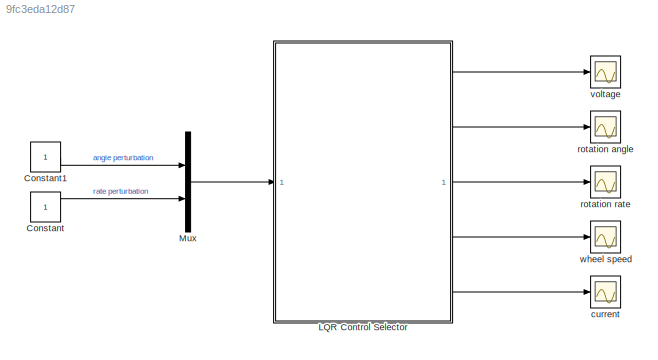
MODEL slx_9fc3eda12d87
KIND model
CONFIG AbsTol = auto
CONFIG EnableMultiTasking = off
CONFIG FixedStep = auto
CONFIG MaxStep = auto
CONFIG MinStep = auto
CONFIG RelTol = 1e-3
CONFIG SampleTimeConstraint = Unconstrained
CONFIG SolverName = VariableStepAuto
CONFIG StartTime = 0.0
CONFIG StopTime = 10
BLOCK [Constant] Constant
BLOCK [Constant] Constant1
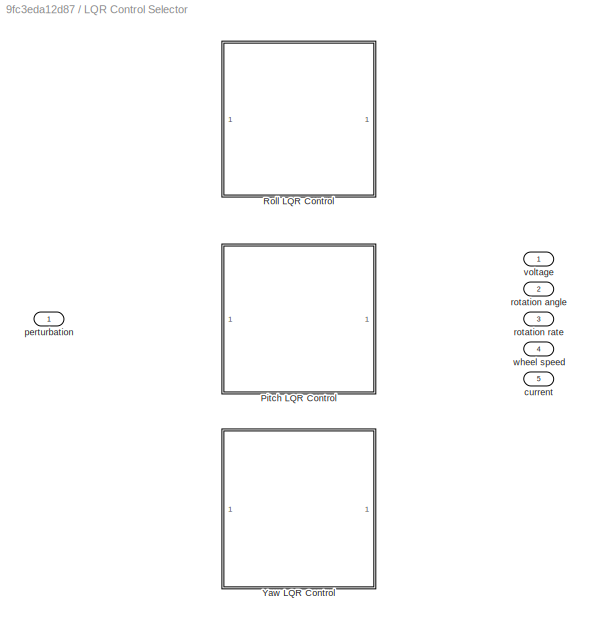
BLOCK [SubSystem] LQR Control Selector
  Variant = on
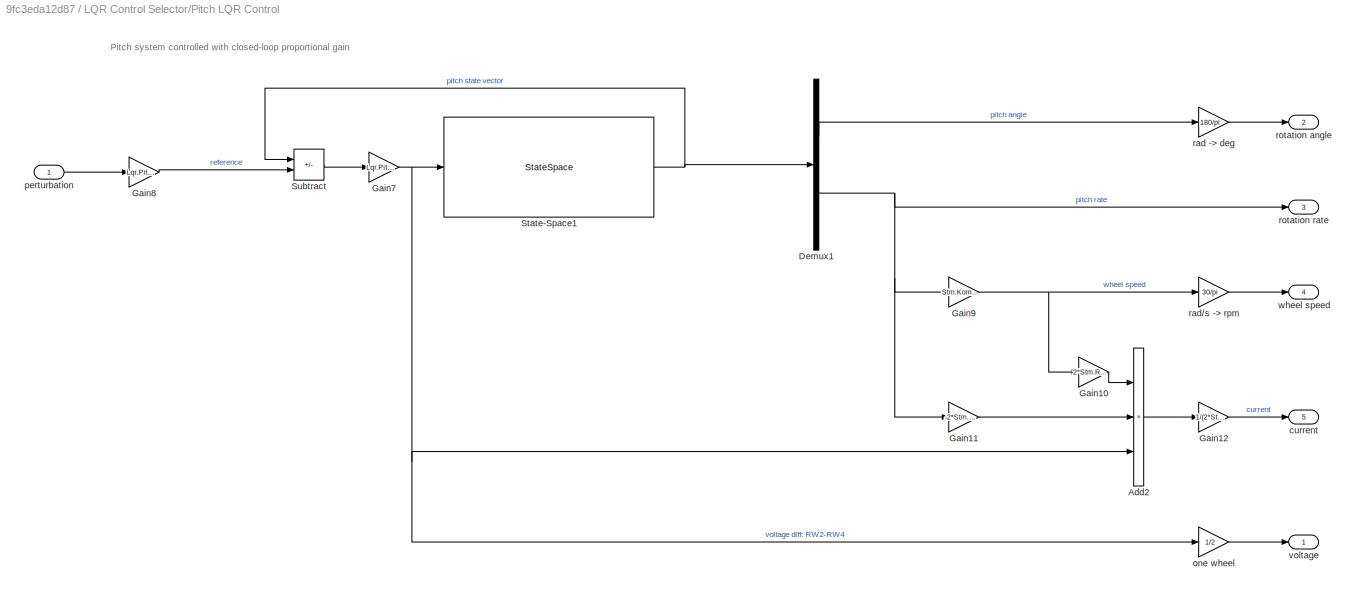
BLOCK [SubSystem] LQR Control Selector/Pitch LQR Control
  VariantControl = strcmp(RunArg.selsim, 'pitch')
BLOCK [Sum] LQR Control Selector/Pitch LQR Control/Add2
  IconShape = rectangular
  Inputs = +++
BLOCK [Demux] LQR Control Selector/Pitch LQR Control/Demux1
  Outputs = 2
BLOCK [Gain] LQR Control Selector/Pitch LQR Control/Gain10
  Gain = 2*Stm.RW.torqueCst
BLOCK [Gain] LQR Control Selector/Pitch LQR Control/Gain11
  Gain = -2*Stm.RW.torqueCst*sin(Stm.RW.beta)
BLOCK [Gain] LQR Control Selector/Pitch LQR Control/Gain12
  Gain = 1/(2*Stm.RW.elecR)
BLOCK [Gain] LQR Control Selector/Pitch LQR Control/Gain7
  Gain = Lqr.Pitch.K
  Multiplication = Matrix(K*u) (u vector)
  NameLocation = top
BLOCK [Gain] LQR Control Selector/Pitch LQR Control/Gain8
  Gain = Lqr.Pitch.targetState
BLOCK [Gain] LQR Control Selector/Pitch LQR Control/Gain9
  Gain = Stm.Komrk.Iyy/(2*Reqr.Sizing.Irw*sin(Stm.RW.beta))
BLOCK [StateSpace] LQR Control Selector/Pitch LQR Control/State-Space1
  A = SS.Pitch.A
  B = SS.Pitch.B
  C = SS.Pitch.C_MIMO
  D = SS.Pitch.D_MIMO
  InitialCondition = 0
BLOCK [Sum] LQR Control Selector/Pitch LQR Control/Subtract
  IconShape = rectangular
  Inputs = -+
BLOCK [Outport] LQR Control Selector/Pitch LQR Control/current
  Port = 5
BLOCK [Gain] LQR Control Selector/Pitch LQR Control/one wheel
  Gain = 1/2
BLOCK [Inport] LQR Control Selector/Pitch LQR Control/perturbation
BLOCK [Gain] LQR Control Selector/Pitch LQR Control/rad -> deg
  Gain = 180/pi
BLOCK [Gain] LQR Control Selector/Pitch LQR Control/rad//s -> rpm
  Gain = 30/pi
BLOCK [Outport] LQR Control Selector/Pitch LQR Control/rotation angle
  Port = 2
BLOCK [Outport] LQR Control Selector/Pitch LQR Control/rotation rate
  Port = 3
BLOCK [Outport] LQR Control Selector/Pitch LQR Control/voltage
BLOCK [Outport] LQR Control Selector/Pitch LQR Control/wheel speed
  Port = 4
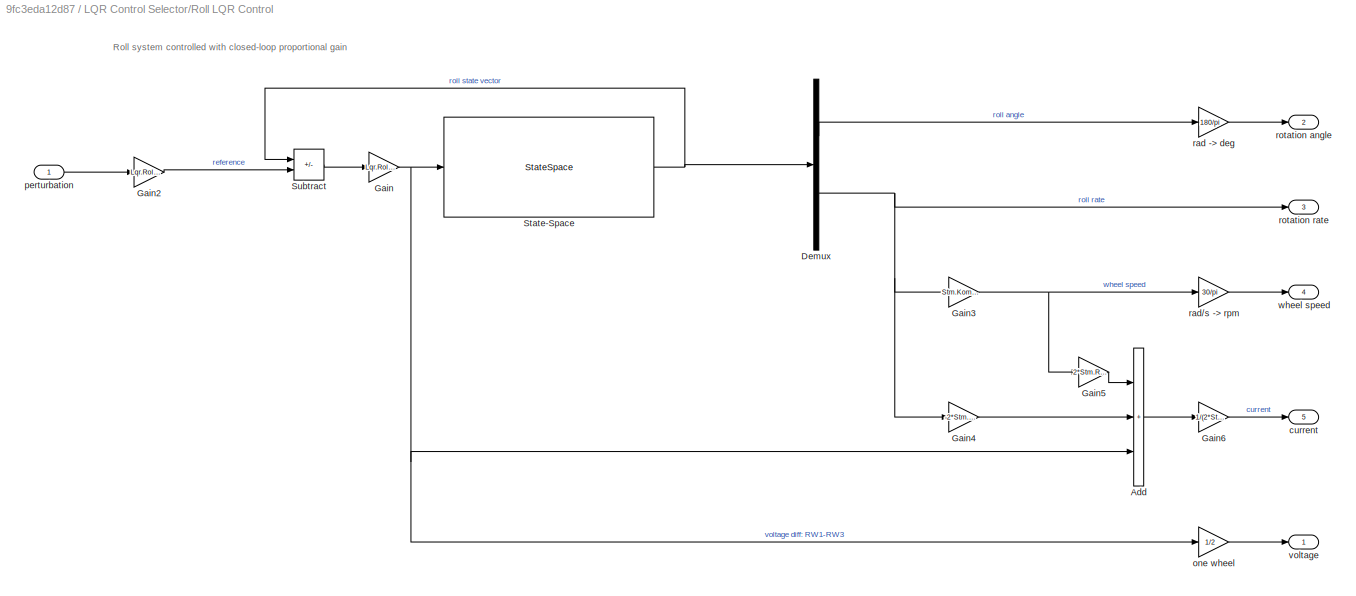
BLOCK [SubSystem] LQR Control Selector/Roll LQR Control
  VariantControl = strcmp(RunArg.selsim, 'roll')
BLOCK [Sum] LQR Control Selector/Roll LQR Control/Add
  IconShape = rectangular
  Inputs = +++
BLOCK [Demux] LQR Control Selector/Roll LQR Control/Demux
  Outputs = 2
BLOCK [Gain] LQR Control Selector/Roll LQR Control/Gain
  Gain = Lqr.Roll.K
  Multiplication = Matrix(K*u) (u vector)
  NameLocation = top
BLOCK [Gain] LQR Control Selector/Roll LQR Control/Gain2
  Gain = Lqr.Roll.targetState
BLOCK [Gain] LQR Control Selector/Roll LQR Control/Gain3
  Gain = Stm.Komrk.Ixx/(2*Reqr.Sizing.Irw*sin(Stm.RW.beta))
BLOCK [Gain] LQR Control Selector/Roll LQR Control/Gain4
  Gain = -2*Stm.RW.torqueCst*sin(Stm.RW.beta)
BLOCK [Gain] LQR Control Selector/Roll LQR Control/Gain5
  Gain = 2*Stm.RW.torqueCst
BLOCK [Gain] LQR Control Selector/Roll LQR Control/Gain6
  Gain = 1/(2*Stm.RW.elecR)
BLOCK [StateSpace] LQR Control Selector/Roll LQR Control/State-Space
  A = SS.Roll.A
  B = SS.Roll.B
  C = SS.Roll.C_MIMO
  D = SS.Roll.D_MIMO
  InitialCondition = 0
BLOCK [Sum] LQR Control Selector/Roll LQR Control/Subtract
  IconShape = rectangular
  Inputs = -+
BLOCK [Outport] LQR Control Selector/Roll LQR Control/current
  Port = 5
BLOCK [Gain] LQR Control Selector/Roll LQR Control/one wheel
  Gain = 1/2
BLOCK [Inport] LQR Control Selector/Roll LQR Control/perturbation
BLOCK [Gain] LQR Control Selector/Roll LQR Control/rad -> deg
  Gain = 180/pi
BLOCK [Gain] LQR Control Selector/Roll LQR Control/rad//s -> rpm
  Gain = 30/pi
BLOCK [Outport] LQR Control Selector/Roll LQR Control/rotation angle
  Port = 2
BLOCK [Outport] LQR Control Selector/Roll LQR Control/rotation rate
  Port = 3
BLOCK [Outport] LQR Control Selector/Roll LQR Control/voltage
BLOCK [Outport] LQR Control Selector/Roll LQR Control/wheel speed
  Port = 4
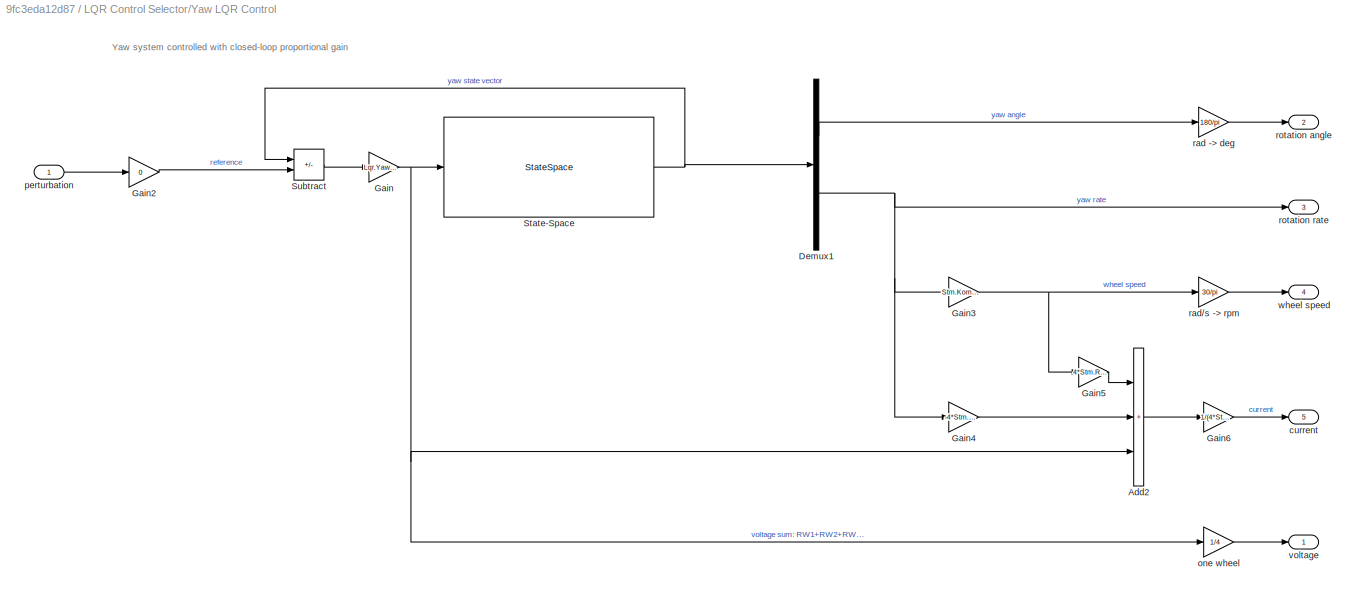
BLOCK [SubSystem] LQR Control Selector/Yaw LQR Control
  VariantControl = strcmp(RunArg.selsim, 'yaw')
BLOCK [Sum] LQR Control Selector/Yaw LQR Control/Add2
  IconShape = rectangular
  Inputs = +++
BLOCK [Demux] LQR Control Selector/Yaw LQR Control/Demux1
  Outputs = 2
BLOCK [Gain] LQR Control Selector/Yaw LQR Control/Gain
  Gain = Lqr.Yaw.K
  Multiplication = Matrix(K*u) (u vector)
  NameLocation = top
BLOCK [Gain] LQR Control Selector/Yaw LQR Control/Gain2
  Gain = 0
BLOCK [Gain] LQR Control Selector/Yaw LQR Control/Gain3
  Gain = Stm.Komrk.Izz/(4*Reqr.Sizing.Irw*cos(Stm.RW.beta))
BLOCK [Gain] LQR Control Selector/Yaw LQR Control/Gain4
  Gain = -4*Stm.RW.torqueCst*cos(Stm.RW.beta)
BLOCK [Gain] LQR Control Selector/Yaw LQR Control/Gain5
  Gain = 4*Stm.RW.torqueCst
BLOCK [Gain] LQR Control Selector/Yaw LQR Control/Gain6
  Gain = 1/(4*Stm.RW.elecR)
BLOCK [StateSpace] LQR Control Selector/Yaw LQR Control/State-Space
  A = SS.Yaw.A
  B = SS.Yaw.B
  C = SS.Yaw.C_MIMO
  D = SS.Yaw.D_MIMO
  InitialCondition = Lqr.Yaw.initialState
BLOCK [Sum] LQR Control Selector/Yaw LQR Control/Subtract
  IconShape = rectangular
  Inputs = -+
BLOCK [Outport] LQR Control Selector/Yaw LQR Control/current
  Port = 5
BLOCK [Gain] LQR Control Selector/Yaw LQR Control/one wheel
  Gain = 1/4
BLOCK [Inport] LQR Control Selector/Yaw LQR Control/perturbation
BLOCK [Gain] LQR Control Selector/Yaw LQR Control/rad -> deg
  Gain = 180/pi
BLOCK [Gain] LQR Control Selector/Yaw LQR Control/rad//s -> rpm
  Gain = 30/pi
BLOCK [Outport] LQR Control Selector/Yaw LQR Control/rotation angle
  Port = 2
BLOCK [Outport] LQR Control Selector/Yaw LQR Control/rotation rate
  Port = 3
BLOCK [Outport] LQR Control Selector/Yaw LQR Control/voltage
BLOCK [Outport] LQR Control Selector/Yaw LQR Control/wheel speed
  Port = 4
BLOCK [Outport] LQR Control Selector/current
  NameLocation = right
  Port = 5
BLOCK [Inport] LQR Control Selector/perturbation
  NameLocation = left
BLOCK [Outport] LQR Control Selector/rotation angle
  NameLocation = right
  Port = 2
BLOCK [Outport] LQR Control Selector/rotation rate
  NameLocation = right
  Port = 3
BLOCK [Outport] LQR Control Selector/voltage
  NameLocation = right
BLOCK [Outport] LQR Control Selector/wheel speed
  NameLocation = right
  Port = 4
BLOCK [Mux] Mux
  DisplayOption = bar
  Inputs = 2
BLOCK [Scope] current
  Floating = off
  NameLocation = right
  NumInputPorts = 1
  ScopeSpecificationString = Simulink.scopes.TimeScopeBlockCfg('CurrentConfiguration', extmgr.ConfigurationSet(extmgr.Configuration('Core','General UI',true),extmgr.Configuration('Core','Source UI',true),extmgr.Configuration('Sources','WiredSimulink',true,'DataLoggingVariableName','current','DataLogging',true,'DataLoggingSaveFormat','Structure'),extmgr.Configuration('Visuals','Time Domain',true,'SerializedDisplays',{struct('M...<+1500ch>
BLOCK [Scope] rotation angle
  Floating = off
  NameLocation = right
  NumInputPorts = 1
  ScopeSpecificationString = Simulink.scopes.TimeScopeBlockCfg('CurrentConfiguration', extmgr.ConfigurationSet(extmgr.Configuration('Core','General UI',true),extmgr.Configuration('Core','Source UI',true),extmgr.Configuration('Sources','WiredSimulink',true,'DataLogging',true,'DataLoggingVariableName','rotAngle','DataLoggingSaveFormat','Structure'),extmgr.Configuration('Visuals','Time Domain',true,'SerializedDisplays',{struct('...<+1492ch>
BLOCK [Scope] rotation rate
  Floating = off
  NameLocation = right
  NumInputPorts = 1
  ScopeSpecificationString = Simulink.scopes.TimeScopeBlockCfg('CurrentConfiguration', extmgr.ConfigurationSet(extmgr.Configuration('Core','General UI',true),extmgr.Configuration('Core','Source UI',true),extmgr.Configuration('Sources','WiredSimulink',true,'DataLoggingVariableName','rotRate','DataLogging',true,'DataLoggingSaveFormat','Structure'),extmgr.Configuration('Visuals','Time Domain',true,'SerializedDisplays',{struct('M...<+1471ch>
BLOCK [Scope] voltage
  Floating = off
  NameLocation = right
  NumInputPorts = 1
  ScopeSpecificationString = Simulink.scopes.TimeScopeBlockCfg('CurrentConfiguration', extmgr.ConfigurationSet(extmgr.Configuration('Core','General UI',true),extmgr.Configuration('Core','Source UI',true),extmgr.Configuration('Sources','WiredSimulink',true,'DataLoggingVariableName','voltage','DataLogging',true,'DataLoggingSaveFormat','Structure'),extmgr.Configuration('Visuals','Time Domain',true,'SerializedDisplays',{struct('M...<+1512ch>
BLOCK [Scope] wheel speed
  Floating = off
  NameLocation = right
  NumInputPorts = 1
  ScopeSpecificationString = Simulink.scopes.TimeScopeBlockCfg('CurrentConfiguration', extmgr.ConfigurationSet(extmgr.Configuration('Core','General UI',true),extmgr.Configuration('Core','Source UI',true),extmgr.Configuration('Sources','WiredSimulink',true,'DataLoggingVariableName','rwSpeed','DataLogging',true,'DataLoggingSaveFormat','Structure'),extmgr.Configuration('Visuals','Time Domain',true,'SerializedDisplays',{struct('M...<+1451ch>
ANNOTATION LQR Control Selector/Pitch LQR Control: Pitch system controlled with closed-loop proportional gain
ANNOTATION LQR Control Selector/Roll LQR Control: Roll system controlled with closed-loop proportional gain
ANNOTATION LQR Control Selector/Yaw LQR Control: Yaw system controlled with closed-loop proportional gain
LINE Constant1:1 -> Mux:1
LINE Constant:1 -> Mux:2
LINE LQR Control Selector/Pitch LQR Control/Add2:1 -> LQR Control Selector/Pitch LQR Control/Gain12:1
LINE LQR Control Selector/Pitch LQR Control/Demux1:1 -> LQR Control Selector/Pitch LQR Control/rad -> deg:1
NET LQR Control Selector/Pitch LQR Control/Demux1:2 -> LQR Control Selector/Pitch LQR Control/Gain11:1, LQR Control Selector/Pitch LQR Control/Gain9:1, LQR Control Selector/Pitch LQR Control/rotation rate:1
LINE LQR Control Selector/Pitch LQR Control/Gain10:1 -> LQR Control Selector/Pitch LQR Control/Add2:1
LINE LQR Control Selector/Pitch LQR Control/Gain11:1 -> LQR Control Selector/Pitch LQR Control/Add2:2
LINE LQR Control Selector/Pitch LQR Control/Gain12:1 -> LQR Control Selector/Pitch LQR Control/current:1
NET LQR Control Selector/Pitch LQR Control/Gain7:1 -> LQR Control Selector/Pitch LQR Control/Add2:3, LQR Control Selector/Pitch LQR Control/State-Space1:1, LQR Control Selector/Pitch LQR Control/one wheel:1
LINE LQR Control Selector/Pitch LQR Control/Gain8:1 -> LQR Control Selector/Pitch LQR Control/Subtract:2
NET LQR Control Selector/Pitch LQR Control/Gain9:1 -> LQR Control Selector/Pitch LQR Control/Gain10:1, LQR Control Selector/Pitch LQR Control/rad//s -> rpm:1
NET LQR Control Selector/Pitch LQR Control/State-Space1:1 -> LQR Control Selector/Pitch LQR Control/Demux1:1, LQR Control Selector/Pitch LQR Control/Subtract:1
LINE LQR Control Selector/Pitch LQR Control/Subtract:1 -> LQR Control Selector/Pitch LQR Control/Gain7:1
LINE LQR Control Selector/Pitch LQR Control/one wheel:1 -> LQR Control Selector/Pitch LQR Control/voltage:1
LINE LQR Control Selector/Pitch LQR Control/perturbation:1 -> LQR Control Selector/Pitch LQR Control/Gain8:1
LINE LQR Control Selector/Pitch LQR Control/rad -> deg:1 -> LQR Control Selector/Pitch LQR Control/rotation angle:1
LINE LQR Control Selector/Pitch LQR Control/rad//s -> rpm:1 -> LQR Control Selector/Pitch LQR Control/wheel speed:1
LINE LQR Control Selector/Roll LQR Control/Add:1 -> LQR Control Selector/Roll LQR Control/Gain6:1
LINE LQR Control Selector/Roll LQR Control/Demux:1 -> LQR Control Selector/Roll LQR Control/rad -> deg:1
NET LQR Control Selector/Roll LQR Control/Demux:2 -> LQR Control Selector/Roll LQR Control/Gain3:1, LQR Control Selector/Roll LQR Control/Gain4:1, LQR Control Selector/Roll LQR Control/rotation rate:1
LINE LQR Control Selector/Roll LQR Control/Gain2:1 -> LQR Control Selector/Roll LQR Control/Subtract:2
NET LQR Control Selector/Roll LQR Control/Gain3:1 -> LQR Control Selector/Roll LQR Control/Gain5:1, LQR Control Selector/Roll LQR Control/rad//s -> rpm:1
LINE LQR Control Selector/Roll LQR Control/Gain4:1 -> LQR Control Selector/Roll LQR Control/Add:2
LINE LQR Control Selector/Roll LQR Control/Gain5:1 -> LQR Control Selector/Roll LQR Control/Add:1
LINE LQR Control Selector/Roll LQR Control/Gain6:1 -> LQR Control Selector/Roll LQR Control/current:1
NET LQR Control Selector/Roll LQR Control/Gain:1 -> LQR Control Selector/Roll LQR Control/Add:3, LQR Control Selector/Roll LQR Control/State-Space:1, LQR Control Selector/Roll LQR Control/one wheel:1
NET LQR Control Selector/Roll LQR Control/State-Space:1 -> LQR Control Selector/Roll LQR Control/Demux:1, LQR Control Selector/Roll LQR Control/Subtract:1
LINE LQR Control Selector/Roll LQR Control/Subtract:1 -> LQR Control Selector/Roll LQR Control/Gain:1
LINE LQR Control Selector/Roll LQR Control/one wheel:1 -> LQR Control Selector/Roll LQR Control/voltage:1
LINE LQR Control Selector/Roll LQR Control/perturbation:1 -> LQR Control Selector/Roll LQR Control/Gain2:1
LINE LQR Control Selector/Roll LQR Control/rad -> deg:1 -> LQR Control Selector/Roll LQR Control/rotation angle:1
LINE LQR Control Selector/Roll LQR Control/rad//s -> rpm:1 -> LQR Control Selector/Roll LQR Control/wheel speed:1
LINE LQR Control Selector/Yaw LQR Control/Add2:1 -> LQR Control Selector/Yaw LQR Control/Gain6:1
LINE LQR Control Selector/Yaw LQR Control/Demux1:1 -> LQR Control Selector/Yaw LQR Control/rad -> deg:1
NET LQR Control Selector/Yaw LQR Control/Demux1:2 -> LQR Control Selector/Yaw LQR Control/Gain3:1, LQR Control Selector/Yaw LQR Control/Gain4:1, LQR Control Selector/Yaw LQR Control/rotation rate:1
LINE LQR Control Selector/Yaw LQR Control/Gain2:1 -> LQR Control Selector/Yaw LQR Control/Subtract:2
NET LQR Control Selector/Yaw LQR Control/Gain3:1 -> LQR Control Selector/Yaw LQR Control/Gain5:1, LQR Control Selector/Yaw LQR Control/rad//s -> rpm:1
LINE LQR Control Selector/Yaw LQR Control/Gain4:1 -> LQR Control Selector/Yaw LQR Control/Add2:2
LINE LQR Control Selector/Yaw LQR Control/Gain5:1 -> LQR Control Selector/Yaw LQR Control/Add2:1
LINE LQR Control Selector/Yaw LQR Control/Gain6:1 -> LQR Control Selector/Yaw LQR Control/current:1
NET LQR Control Selector/Yaw LQR Control/Gain:1 -> LQR Control Selector/Yaw LQR Control/Add2:3, LQR Control Selector/Yaw LQR Control/State-Space:1, LQR Control Selector/Yaw LQR Control/one wheel:1
NET LQR Control Selector/Yaw LQR Control/State-Space:1 -> LQR Control Selector/Yaw LQR Control/Demux1:1, LQR Control Selector/Yaw LQR Control/Subtract:1
LINE LQR Control Selector/Yaw LQR Control/Subtract:1 -> LQR Control Selector/Yaw LQR Control/Gain:1
LINE LQR Control Selector/Yaw LQR Control/one wheel:1 -> LQR Control Selector/Yaw LQR Control/voltage:1
LINE LQR Control Selector/Yaw LQR Control/perturbation:1 -> LQR Control Selector/Yaw LQR Control/Gain2:1
LINE LQR Control Selector/Yaw LQR Control/rad -> deg:1 -> LQR Control Selector/Yaw LQR Control/rotation angle:1
LINE LQR Control Selector/Yaw LQR Control/rad//s -> rpm:1 -> LQR Control Selector/Yaw LQR Control/wheel speed:1
LINE LQR Control Selector:1 -> voltage:1
LINE LQR Control Selector:2 -> rotation angle:1
LINE LQR Control Selector:3 -> rotation rate:1
LINE LQR Control Selector:4 -> wheel speed:1
LINE LQR Control Selector:5 -> current:1
LINE Mux:1 -> LQR Control Selector:1
note: NET lines group one-source signal fan-out (src -> all destinations, sorted); 1:1 wires keep LINE
